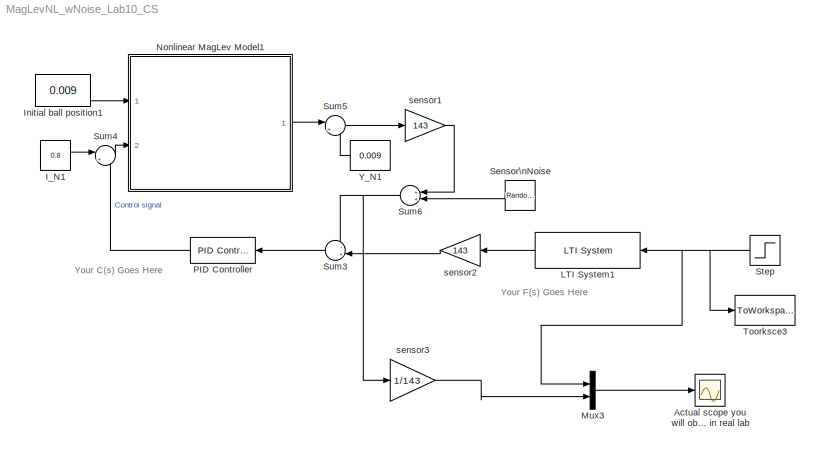
MODEL MagLevNL_wNoise_Lab10_CS
KIND model
CONFIG InitFcn = K_plant = 1.241578125e-3+0.3*(1-2*rand)*1e-3
BLOCK [Scope] Actual scope you will observe in real lab
  Floating = off
  NumInputPorts = 1
  Ports = [1]
  SID = 1
  ScopeSpecificationString = Simulink.scopes.TimeScopeBlockCfg('CurrentConfiguration', extmgr.ConfigurationSet(extmgr.Configuration('Core','General UI',true),extmgr.Configuration('Core','Source UI',true),extmgr.Configuration('Sources','WiredSimulink',true,'DataLoggingVariableName','ScopeData1'),extmgr.Configuration('Visuals','Time Domain',true,'SerializedDisplays',{struct('MinYLimReal','-0.00193','MaxYLimReal','0.01476','YLab...<+1494ch>
BLOCK [Constant] I_N1
  SID = 2
  Value = 0.8
BLOCK [Constant] Initial ball position1
  SID = 3
  Value = 0.009
BLOCK [Reference] LTI System1  REF=cstblocks/LTI System
  IC = []
  Ports = [1, 1]
  RTWMemSecDataConstants = Inherit from model
  RTWMemSecDataInternal = Inherit from model
  RTWMemSecDataParameters = Inherit from model
  RTWMemSecFuncExecute = Inherit from model
  RTWMemSecFuncInitTerm = Inherit from model
  SID = 37
  SourceBlock = cstblocks/LTI System
  SourceProductBaseCode = CT
  SourceProductName = Control System Toolbox
  SourceType = LTI Block
  sys = tf(5,[1 5])
BLOCK [Mux] Mux3
  DisplayOption = bar
  Inputs = 2
  Ports = [2, 1]
  SID = 5
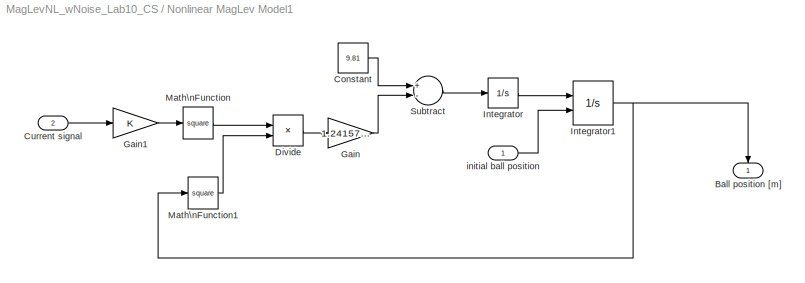
BLOCK [SubSystem] Nonlinear MagLev Model1
  Ports = [2, 1]
  RequestExecContextInheritance = off
  SID = 6
BLOCK [Outport] Nonlinear MagLev Model1/Ball position [m]
  IconDisplay = Port number
  SID = 18
BLOCK [Constant] Nonlinear MagLev Model1/Constant
  SID = 9
  Value = 9.81
BLOCK [Inport] Nonlinear MagLev Model1/Current signal
  IconDisplay = Port number
  Port = 2
  SID = 8
BLOCK [Product] Nonlinear MagLev Model1/Divide
  InputSameDT = off
  Inputs = */
  OutDataTypeStr = Inherit: Inherit via internal rule
  Ports = [2, 1]
  RndMeth = Floor
  SID = 10
  SaturateOnIntegerOverflow = off
BLOCK [Gain] Nonlinear MagLev Model1/Gain
  Gain = 1.241578125e-3
  OutDataTypeStr = Inherit: Inherit via internal rule
  ParamDataTypeStr = Inherit: Inherit via internal rule
  SID = 11
  SaturateOnIntegerOverflow = off
BLOCK [Gain] Nonlinear MagLev Model1/Gain1
  OutDataTypeStr = Inherit: Inherit via internal rule
  ParamDataTypeStr = Inherit: Inherit via internal rule
  SID = 12
  SaturateOnIntegerOverflow = off
BLOCK [Integrator] Nonlinear MagLev Model1/Integrator
  Ports = [1, 1]
  SID = 13
BLOCK [Integrator] Nonlinear MagLev Model1/Integrator1
  InitialConditionSource = external
  Ports = [2, 1]
  SID = 14
BLOCK [Math] Nonlinear MagLev Model1/Math\nFunction
  Operator = square
  Ports = [1, 1]
  SID = 15
BLOCK [Math] Nonlinear MagLev Model1/Math\nFunction1
  Operator = square
  Ports = [1, 1]
  SID = 16
BLOCK [Sum] Nonlinear MagLev Model1/Subtract
  InputSameDT = off
  Inputs = +-
  OutDataTypeStr = Inherit: Inherit via internal rule
  Ports = [2, 1]
  SID = 17
  SaturateOnIntegerOverflow = off
BLOCK [Inport] Nonlinear MagLev Model1/initial ball position
  IconDisplay = Port number
  SID = 7
BLOCK [Reference] PID Controller  REF=simulink/Continuous/PID Controller
  AWVariant = Passthrough
  AntiWindupMode = none
  Controller = PID
  ControllerParametersSource = internal
  D = -0.0532
  DGainOutDataTypeStr = Inherit: Inherit via internal rule
  DOutMax = []
  DOutMin = []
  DParamDataTypeStr = Inherit: Inherit via internal rule
  DParamMax = []
  DParamMin = []
  DProdOutDataTypeStr = Inherit: Inherit via internal rule
  DVariant = InternalParameters
  DerivativeFilterVariant = ContFilter
  DifferentiatorICPrevScaledInput = 0
  DifferentiatorOutDataTypeStr = Inherit: Inherit via internal rule
  DifferentiatorOutMax = []
  DifferentiatorOutMin = []
  DivideOutDataTypeStr = Inherit: Inherit via internal rule
  DivideOutMax = []
  DivideOutMin = []
  ExternalReset = none
  ExternalResetVariant = Disabled
  FdbkBlocksVariant = Forward
  FilterContinuousStateAttributes = ''
  FilterDiffDenAccumDataTypeStr = Inherit: Inherit via internal rule
  FilterDiffDenProductOutputDataTypeStr = Inherit: Inherit via internal rule
  FilterDiffNumAccumDataTypeStr = Inherit: Inherit via internal rule
  FilterDiffNumProductOutputDataTypeStr = Inherit: Inherit via internal rule
  FilterDiffOutCoefDataTypeStr = Inherit: Inherit via internal rule
  FilterDiffOutCoefMax = []
  FilterDiffOutCoefMin = []
  FilterICVariant = InternalICsFilter
  FilterMethod = Forward Euler
  FilterOutDataTypeStr = Inherit: Inherit via internal rule
  FilterOutMax = []
  FilterOutMin = []
  FilterRTWStateStorageClass = Auto
  FilterStateMustResolveToSignalObject = off
  Form = Parallel
  I = -3.09
  IGainOutDataTypeStr = Inherit: Inherit via internal rule
  IOutMax = []
  IOutMin = []
  IParamDataTypeStr = Inherit: Inherit via internal rule
  IParamMax = []
  IParamMin = []
  IProdOutDataTypeStr = Inherit: Inherit via internal rule
  IVariant = InternalParameters
  IdealPFdbkVariant = Disabled
  IdealPVariant = Disabled
  IgnoreLimit = off
  InitialConditionForFilter = 0
  InitialConditionForIntegrator = 0
  InitialConditionSetting = Auto
  InitialConditionSource = internal
  IntegratorContinuousStateAttributes = ''
  IntegratorICVariant = InternalICs
  IntegratorMethod = Forward Euler
  IntegratorOutDataTypeStr = Inherit: Inherit via internal rule
  IntegratorOutMax = []
  IntegratorOutMin = []
  IntegratorRTWStateStorageClass = Auto
  IntegratorStateMustResolveToSignalObject = off
  IntegratorVariant = Continuous
  Kb = 1
  KbOutDataTypeStr = Inherit: Inherit via internal rule
  KbOutMax = []
  KbOutMin = []
  KbParamDataTypeStr = Inherit: Inherit via internal rule
  KbParamMax = []
  KbParamMin = []
  Kt = 1
  KtOutDataTypeStr = Inherit: Inherit via internal rule
  KtOutMax = []
  KtOutMin = []
  KtParamDataTypeStr = Inherit: Inherit via internal rule
  KtParamMax = []
  KtParamMin = []
  LimitOutput = off
  LinearizeAsGain = on
  LockScale = off
  LowerSaturationLimit = -inf
  N = 1000
  NCopyVariant = Disabled
  NGainOutDataTypeStr = Inherit: Inherit via internal rule
  NOutMax = []
  NOutMin = []
  NParamDataTypeStr = Inherit: Inherit via internal rule
  NParamMax = []
  NParamMin = []
  NProdOutDataTypeStr = Inherit: Inherit via internal rule
  NVariant = InternalParameters
  P = -4.45
  PCopyVariant = Disabled
  PGainOutDataTypeStr = Inherit: Inherit via internal rule
  POutMax = []
  POutMin = []
  PParamDataTypeStr = Inherit: Inherit via internal rule
  PParamMax = []
  PParamMin = []
  PProdOutDataTypeStr = Inherit: Inherit via internal rule
  ParallelPVariant = InternalParameters
  Ports = [1, 1]
  RTWMemSecDataConstants = Inherit from model
  RTWMemSecDataInternal = Inherit from model
  RTWMemSecDataParameters = Inherit from model
  RTWMemSecFuncExecute = Inherit from model
  RTWMemSecFuncInitTerm = Inherit from model
  ReciprocalOutDataTypeStr = Inherit: Inherit via internal rule
  ReciprocalOutMax = []
  ReciprocalOutMin = []
  RndMeth = Floor
  SID = 38
  SampleTime = -1
  SatFdbkVariant = Disabled
  SatVariant = Disabled
  SaturateOnIntegerOverflow = off
  SaturationOutDataTypeStr = Inherit: Same as input
  SaturationOutMax = []
  SaturationOutMin = []
  SourceBlock = simulink/Continuous/PID Controller
  SourceProductBaseCode = SL
  SourceProductName = Simulink
  SourceType = PID 1dof
  SumAccumDataTypeStr = Inherit: Inherit via internal rule
  SumDAccumDataTypeStr = Inherit: Inherit via internal rule
  SumDOutDataTypeStr = Inherit: Inherit via internal rule
  SumDOutMax = []
  SumDOutMin = []
  SumDenAccumDataTypeStr = Inherit: Inherit via internal rule
  SumDenOutDataTypeStr = Inherit: Inherit via internal rule
  SumDenOutMax = []
  SumDenOutMin = []
  SumFdbkVariant = Disabled
  SumI1AccumDataTypeStr = Inherit: Inherit via internal rule
  SumI1OutDataTypeStr = Inherit: Inherit via internal rule
  SumI1OutMax = []
  SumI1OutMin = []
  SumI2AccumDataTypeStr = Inherit: Inherit via internal rule
  SumI2OutDataTypeStr = Inherit: Inherit via internal rule
  SumI2OutMax = []
  SumI2OutMin = []
  SumI3AccumDataTypeStr = Inherit: Inherit via internal rule
  SumI3OutDataTypeStr = Inherit: Inherit via internal rule
  SumI3OutMax = []
  SumI3OutMin = []
  SumI4AccumDataTypeStr = Inherit: Inherit via internal rule
  SumI4OutDataTypeStr = Inherit: Inherit via internal rule
  SumI4OutMax = []
  SumI4OutMin = []
  SumNumAccumDataTypeStr = Inherit: Inherit via internal rule
  SumNumOutDataTypeStr = Inherit: Inherit via internal rule
  SumNumOutMax = []
  SumNumOutMin = []
  SumOutDataTypeStr = Inherit: Inherit via internal rule
  SumOutMax = []
  SumOutMin = []
  SumVariant = Sum_PID
  TRSumVariant = Passthrough
  TRVariant = Disabled
  TimeDomain = Continuous-time
  TrackingMode = off
  TunerSelectOption = Transfer Function Based (PID Tuner App)
  UpperSaturationLimit = inf
  UseFilter = on
  ZeroCross = on
BLOCK [RandomNumber] Sensor\nNoise
  SID = 20
  SampleTime = 0.01
  Variance = 5e-5
BLOCK [Step] Step
  After = 0.012
  SID = 22
  SampleTime = 0
  Time = 3
BLOCK [Sum] Sum3
  IconShape = round
  InputSameDT = off
  Inputs = -+|
  OutDataTypeStr = Inherit: Inherit via internal rule
  Ports = [2, 1]
  SID = 23
  SaturateOnIntegerOverflow = off
BLOCK [Sum] Sum4
  IconShape = round
  InputSameDT = off
  Inputs = |++
  OutDataTypeStr = Inherit: Inherit via internal rule
  Ports = [2, 1]
  SID = 24
  SaturateOnIntegerOverflow = off
BLOCK [Sum] Sum5
  IconShape = round
  InputSameDT = off
  Inputs = |+-
  OutDataTypeStr = Inherit: Inherit via internal rule
  Ports = [2, 1]
  SID = 25
  SaturateOnIntegerOverflow = off
BLOCK [Sum] Sum6
  IconShape = round
  InputSameDT = off
  Inputs = ++|
  OutDataTypeStr = Inherit: Inherit via internal rule
  Ports = [2, 1]
  SID = 26
  SaturateOnIntegerOverflow = off
BLOCK [ToWorkspace] Toorksce3
  MaxDataPoints = inf
  Ports = [1]
  SID = 28
  SampleTime = 0.01
  VariableName = r
BLOCK [Constant] Y_N1
  SID = 31
  Value = 0.009
BLOCK [Gain] sensor1
  Gain = 143
  OutDataTypeStr = Inherit: Inherit via internal rule
  ParamDataTypeStr = Inherit: Inherit via internal rule
  SID = 32
  SaturateOnIntegerOverflow = off
BLOCK [Gain] sensor2
  Gain = 143
  OutDataTypeStr = Inherit: Inherit via internal rule
  ParamDataTypeStr = Inherit: Inherit via internal rule
  SID = 33
  SaturateOnIntegerOverflow = off
BLOCK [Gain] sensor3
  Gain = 1/143
  OutDataTypeStr = Inherit: Inherit via internal rule
  ParamDataTypeStr = Inherit: Inherit via internal rule
  SID = 34
  SaturateOnIntegerOverflow = off
ANNOTATION (root): Your C(s) Goes Here
ANNOTATION (root): Your F(s) Goes Here
LINE I_N1:1 -> Sum4:1
LINE Initial ball position1:1 -> Nonlinear MagLev Model1:1
LINE LTI System1:1 -> sensor2:1
LINE Mux3:1 -> Actual scope you will observe in real lab:1
LINE Nonlinear MagLev Model1/Constant:1 -> Nonlinear MagLev Model1/Subtract:1
LINE Nonlinear MagLev Model1/Current signal:1 -> Nonlinear MagLev Model1/Gain1:1
LINE Nonlinear MagLev Model1/Divide:1 -> Nonlinear MagLev Model1/Gain:1
LINE Nonlinear MagLev Model1/Gain1:1 -> Nonlinear MagLev Model1/Math\nFunction:1
LINE Nonlinear MagLev Model1/Gain:1 -> Nonlinear MagLev Model1/Subtract:2
NET Nonlinear MagLev Model1/Integrator1:1 -> Nonlinear MagLev Model1/Ball position [m]:1, Nonlinear MagLev Model1/Math\nFunction1:1
LINE Nonlinear MagLev Model1/Integrator:1 -> Nonlinear MagLev Model1/Integrator1:1
LINE Nonlinear MagLev Model1/Math\nFunction1:1 -> Nonlinear MagLev Model1/Divide:2
LINE Nonlinear MagLev Model1/Math\nFunction:1 -> Nonlinear MagLev Model1/Divide:1
LINE Nonlinear MagLev Model1/Subtract:1 -> Nonlinear MagLev Model1/Integrator:1
LINE Nonlinear MagLev Model1/initial ball position:1 -> Nonlinear MagLev Model1/Integrator1:2
LINE Nonlinear MagLev Model1:1 -> Sum5:1
LINE PID Controller:1 -> Sum4:2
LINE Sensor\nNoise:1 -> Sum6:2
NET Step:1 -> LTI System1:1, Mux3:1, Toorksce3:1
LINE Sum3:1 -> PID Controller:1
LINE Sum4:1 -> Nonlinear MagLev Model1:2
LINE Sum5:1 -> sensor1:1
NET Sum6:1 -> Sum3:1, sensor3:1
LINE Y_N1:1 -> Sum5:2
LINE sensor1:1 -> Sum6:1
LINE sensor2:1 -> Sum3:2
LINE sensor3:1 -> Mux3:2
note: NET lines group one-source signal fan-out (src -> all destinations, sorted); 1:1 wires keep LINE
